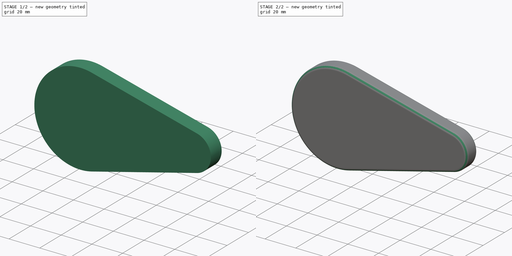
[diagram: build sequence overview — one tinted view per stage of 2, left to right]
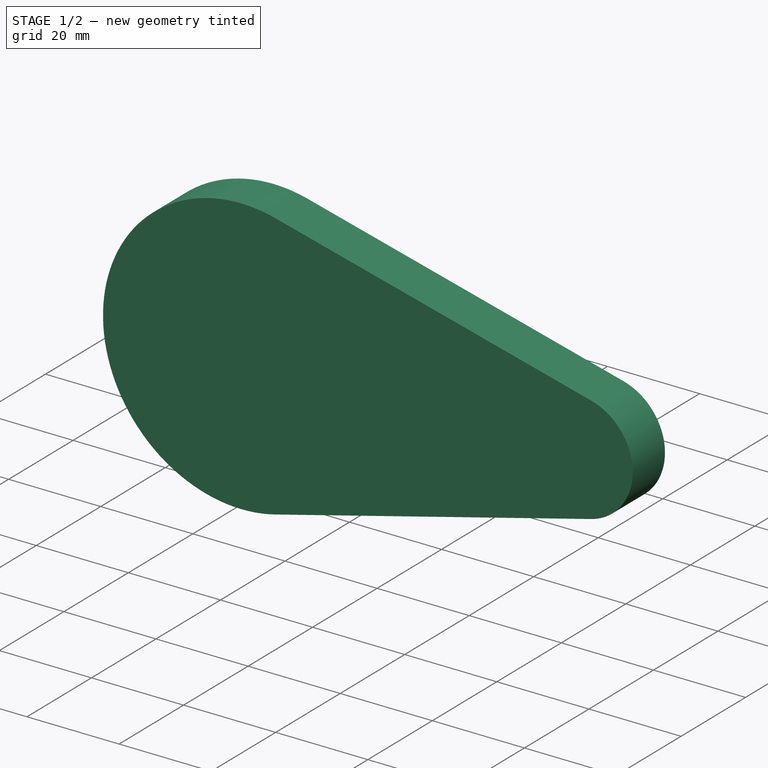
[diagram: stage 1 of 2 — iso view after this stage's code; geometry added in this stage tinted green]
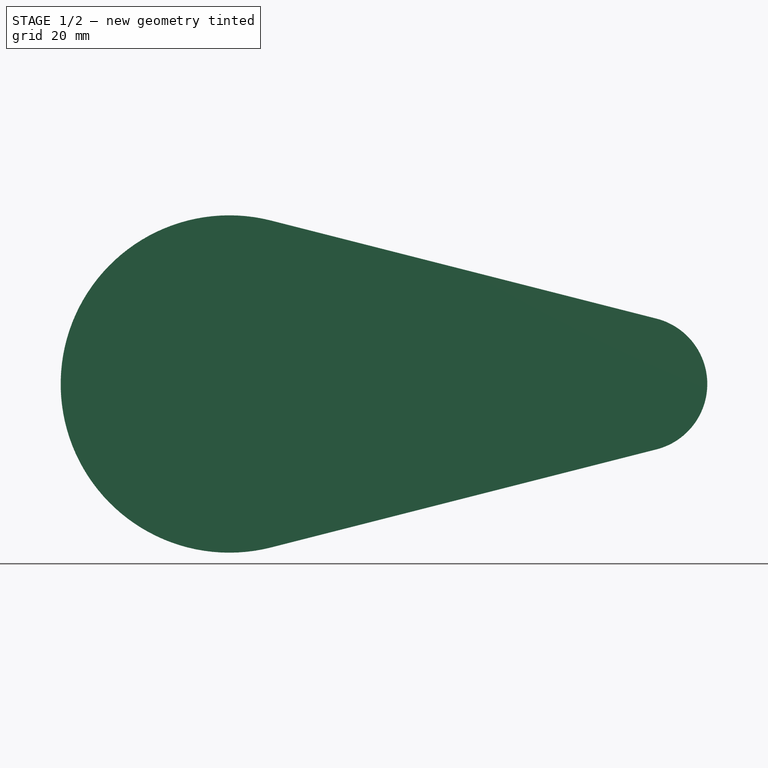
[diagram: stage 1 of 2 — front view after this stage's code; geometry added in this stage tinted green]
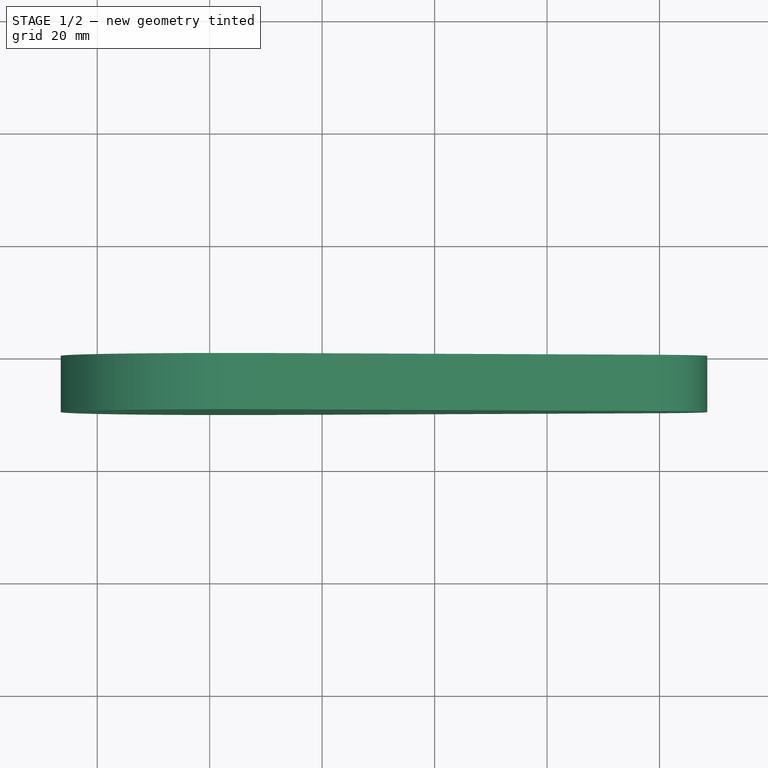
[diagram: stage 1 of 2 — top view after this stage's code; geometry added in this stage tinted green]
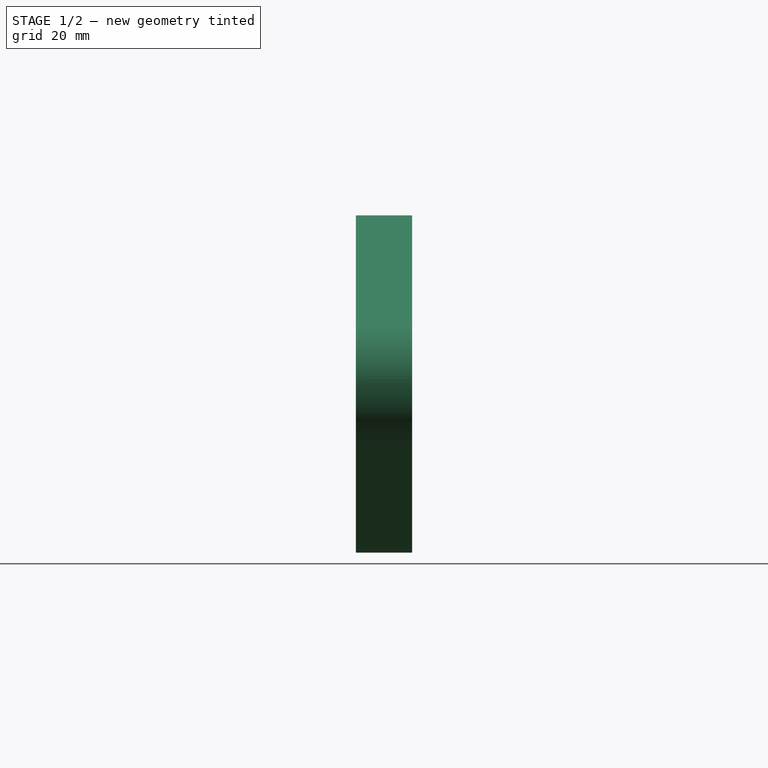
[diagram: stage 1 of 2 — right view after this stage's code; geometry added in this stage tinted green]
FCSTD DOCUMENT  (FreeCAD 0.16R6707 (Git))
Label: Pala_Pinball
License: CreativeCommons Attribution-ShareAlike
LicenseURL: http://creativecommons.org/licenses/by-sa/4.0/
objects: Sketcher::SketchObject×1, PartDesign::Pad×1, PartDesign::Fillet×1
note: 4 computed .brp shape members not serialized (recipe doc carries the construction recipe); baked Part::Feature solids carry a one-line shape summary decoded from their .brp

FEATURE [Sketcher::SketchObject] Sketch  label="BCT_Pala_Pinball"
  Placement = pos=(0,0,0) rot=(-1,0,0;4.71239rad)
  sketch-geometry (6):
    g0: LineSegment StartX=-29.1028 StartY=29.0737 StartZ=0 EndX=39.4589 EndY=11.6295 EndZ=0
    g1: LineSegment StartX=-29.1028 StartY=-29.0737 StartZ=0 EndX=39.4589 EndY=-11.6295 EndZ=0
    g2: ArcOfCircle CenterX=-36.5 CenterY=0 CenterZ=0 NormalX=0 NormalY=0 NormalZ=1 Radius=30 StartAngle=1.32165 EndAngle=4.96153
    g3: ArcOfCircle CenterX=36.5 CenterY=0 CenterZ=0 NormalX=0 NormalY=0 NormalZ=1 Radius=12 StartAngle=4.96153 EndAngle=7.60484
    g4: LineSegment [constr] StartX=-29.1028 StartY=29.0737 StartZ=0 EndX=-29.1028 EndY=-29.0737 EndZ=0
    g5: LineSegment [constr] StartX=-66.5 StartY=0 StartZ=0 EndX=48.5 EndY=0 EndZ=0
  constraints (17):
    c: Tangent(g0,g2)
    c: Tangent(g0,g3) = 1.5708
    c: Tangent(g1,g3) = -1.5708
    c: Coincident(g2,g0)
    c: Coincident(g2,g1)
    c: Symmetric(g2,g3,g-2)
    c: Radius(g2) = 30
    c: Radius(g3) = 12
    c: PointOnObject(g2,g-1)
    c: Coincident(g4,g0)
    c: Vertical(g4)
    c: Coincident(g1,g4)
    c: PointOnObject(g5,g3)
    c: Horizontal(g5)
    c: PointOnObject(g5,g2)
    c: PointOnObject(g5,g-1)
    c: DistanceX(g5,g5) = 115
FEATURE [PartDesign::Pad] Pad  label="Pala_Pinball"
  Length = 10
  Length2 = 100
  Placement = pos=(0,0,0) rot=(-1,0,0;4.71239rad)
  Sketch = -> Sketch
  Type = 0
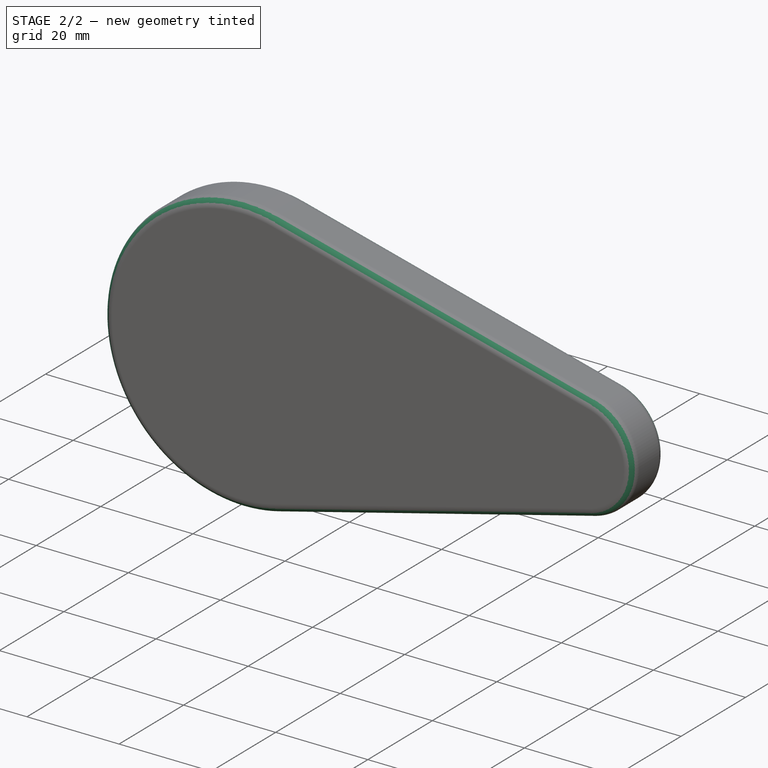
[diagram: stage 2 of 2 — iso view after this stage's code; geometry added in this stage tinted green]
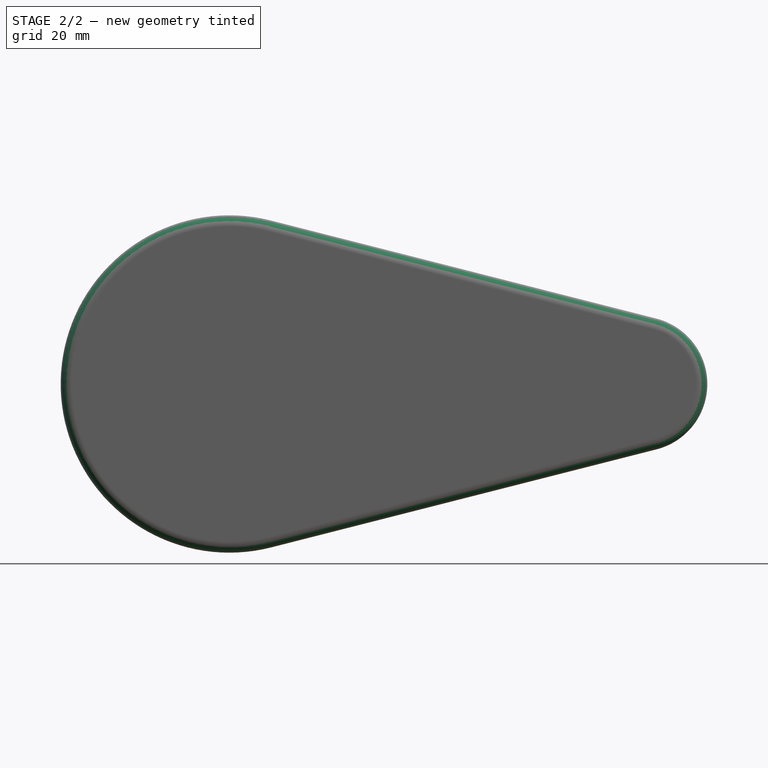
[diagram: stage 2 of 2 — front view after this stage's code; geometry added in this stage tinted green]
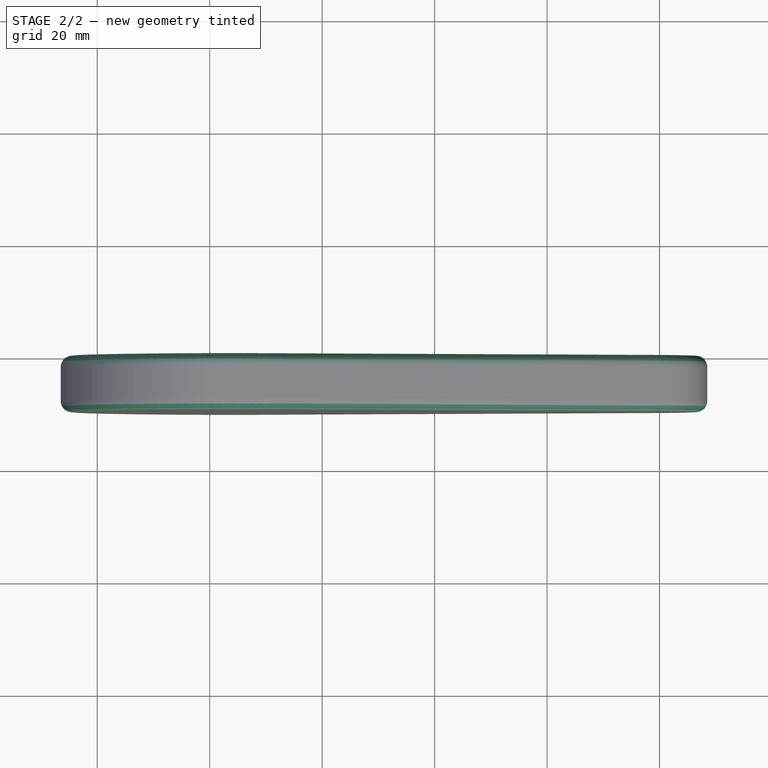
[diagram: stage 2 of 2 — top view after this stage's code; geometry added in this stage tinted green]
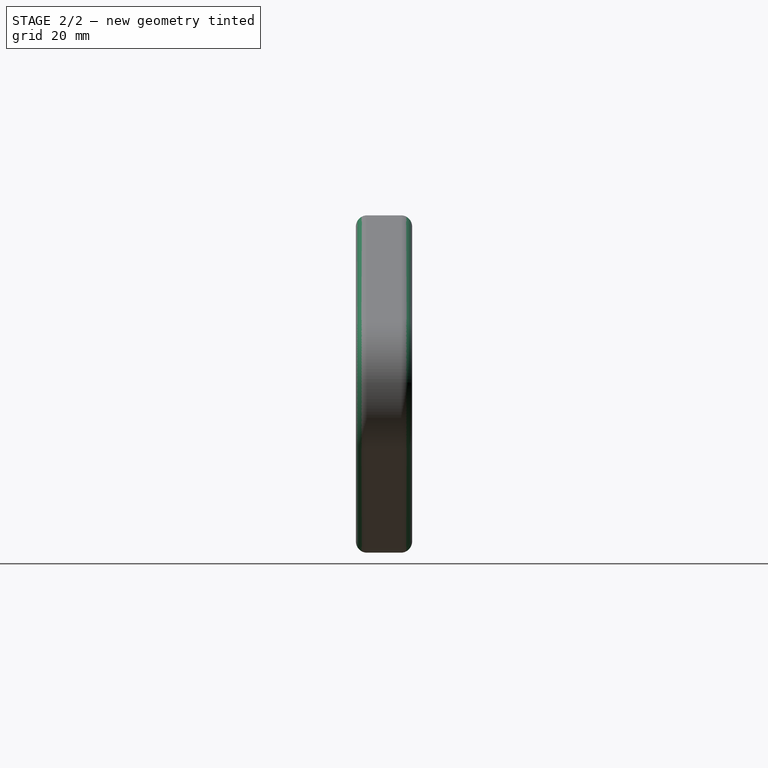
[diagram: stage 2 of 2 — right view after this stage's code; geometry added in this stage tinted green]
FEATURE [PartDesign::Fillet] Fillet  label="Pala_Redondeada"
  Base = -> Pad [Edge4,Edge7,Edge10,Edge12,Edge3,Edge6,Edge9,Edge11]
  Placement = pos=(0,0,0) rot=(-1,0,0;4.71239rad)
  Radius = 2
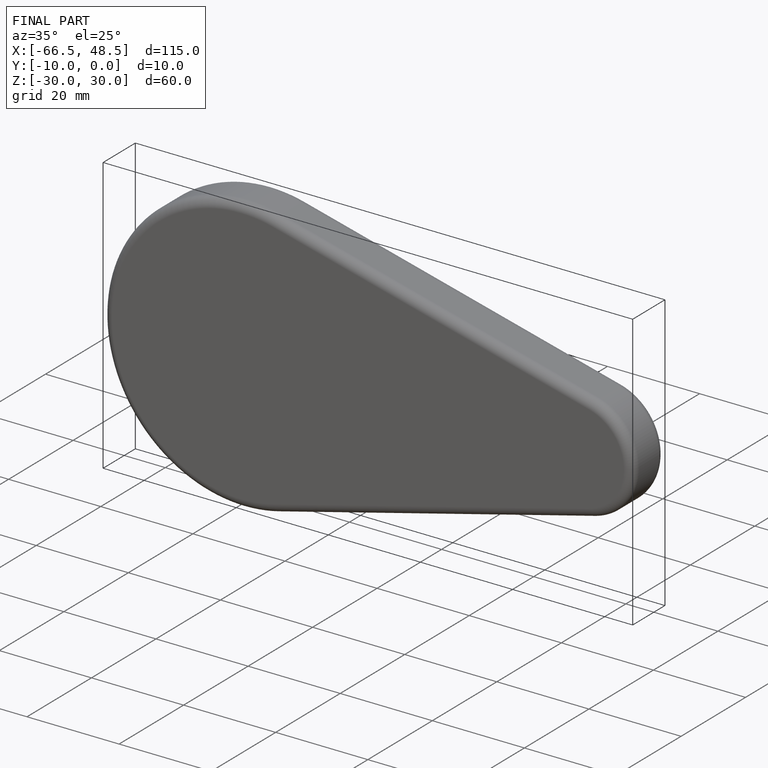
[diagram: finished part — iso view with bounding-box wireframe]
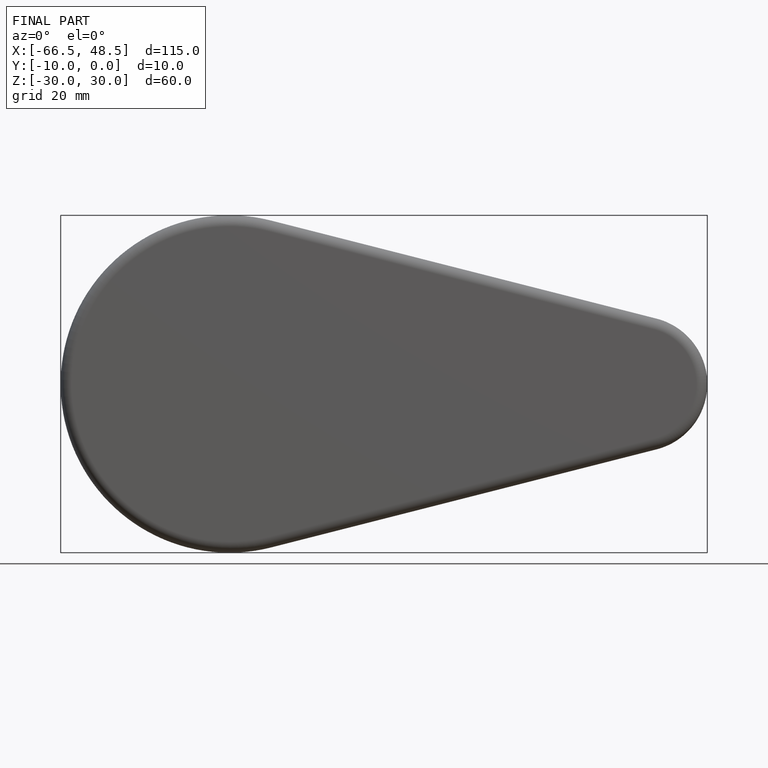
[diagram: finished part — front view with bounding-box wireframe]
